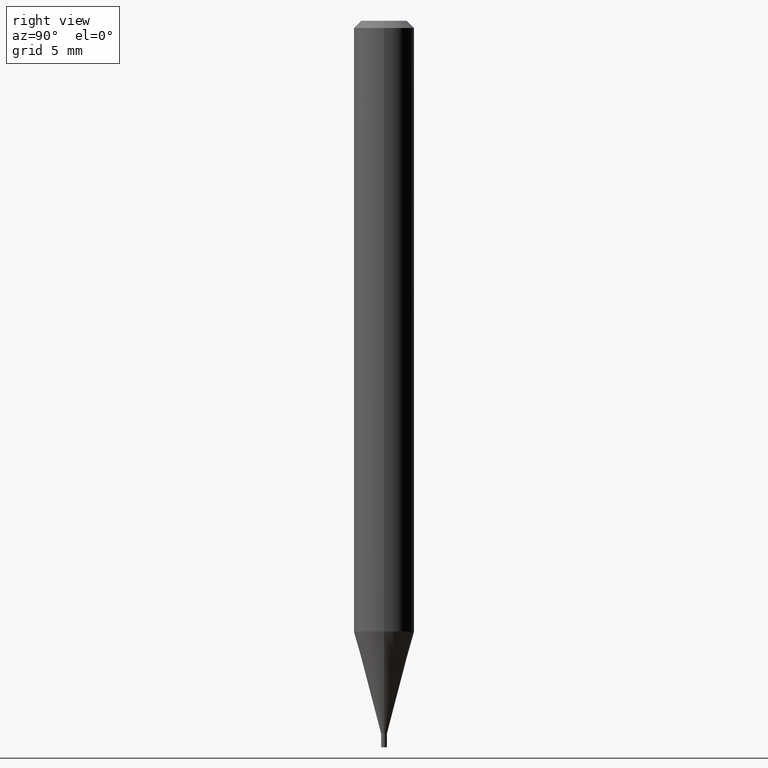
[diagram: clean part render]
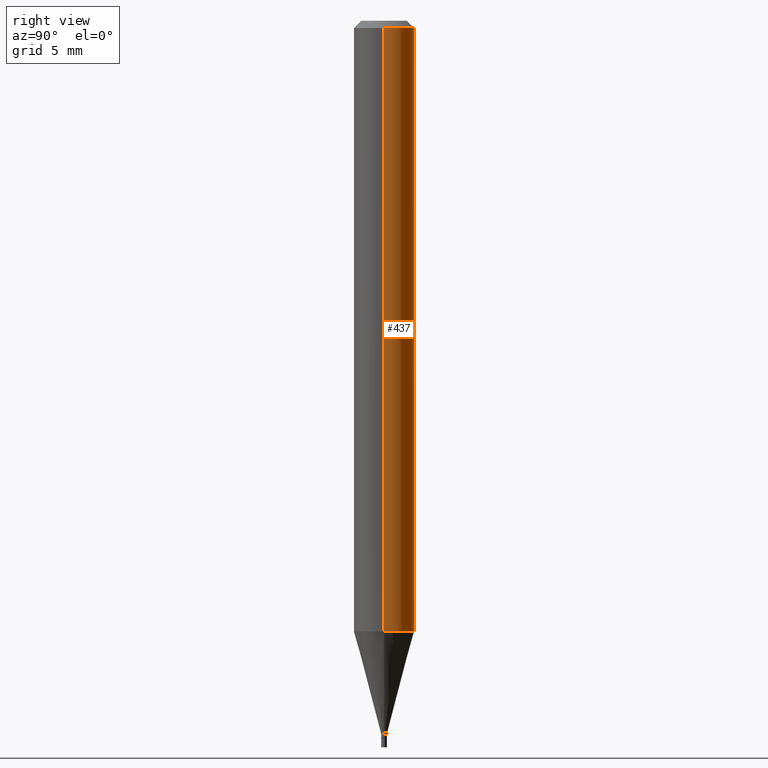
[diagram: same view with one face highlighted and labeled with its STEP entity id]
A machine part, right view. The second image highlights one B-rep face of the part: STEP entity #437.
In plain terms, the highlighted cylindrical surface (edge-blend (fillet) strip) has radius 1.5875 mm, axis along (-0, 0, 1).
Its self-contained STEP definition (entity closure, byte-faithful):
#4 = ORIENTED_EDGE ( 'NONE', *, *, #393, .T. ) ;
#13 = DIRECTION ( 'NONE',  ( -2.445468806185136877E-29, 3.491481338843145188E-15, 1.000000000000000000 ) ) ;
#16 = FACE_OUTER_BOUND ( 'NONE', #401, .T. ) ;
#36 = AXIS2_PLACEMENT_3D ( 'NONE', #82, #234, #56 ) ;
#56 = DIRECTION ( 'NONE',  ( 1.000000000000000000, -6.982962677686266711E-15, 4.876176775795935793E-29 ) ) ;
#58 = VECTOR ( 'NONE', #13, 39.37007874015748143 ) ;
#59 = CARTESIAN_POINT ( 'NONE',  ( -0.06250000000000000000, -1.783718768135502348E-15, -0.01499999999999999944 ) ) ;
#82 = CARTESIAN_POINT ( 'NONE',  ( 0.000000000000000000, 0.000000000000000000, 0.000000000000000000 ) ) ;
#86 = CARTESIAN_POINT ( 'NONE',  ( 0.06250000000000000000, -4.888073874380388472E-16, -0.01499999999999999944 ) ) ;
#106 = AXIS2_PLACEMENT_3D ( 'NONE', #303, #151, #447 ) ;
#131 = CIRCLE ( 'NONE', #106, 0.06250000000000000000 ) ;
#151 = DIRECTION ( 'NONE',  ( -2.445468806185136597E-29, 3.491481338843145583E-15, 1.000000000000000000 ) ) ;
#155 = VERTEX_POINT ( 'NONE', #59 ) ;
#186 = CYLINDRICAL_SURFACE ( 'NONE', #36, 0.06250000000000000000 ) ;
#191 = CARTESIAN_POINT ( 'NONE',  ( 0.06250000000000000000, -4.364351673553916694E-16, 3.047610484872459871E-30 ) ) ;
#196 = CARTESIAN_POINT ( 'NONE',  ( -0.06250000000000000000, -3.959154526038420628E-15, -1.261139129372358836 ) ) ;
#205 = EDGE_CURVE ( 'NONE', #354, #387, #131, .T. ) ;
#218 = LINE ( 'NONE', #300, #58 ) ;
#229 = DIRECTION ( 'NONE',  ( -2.445468806185136877E-29, 3.491481338843145188E-15, 1.000000000000000000 ) ) ;
#234 = DIRECTION ( 'NONE',  ( -2.445468806185136597E-29, 3.491481338843145583E-15, 1.000000000000000000 ) ) ;
#248 = VERTEX_POINT ( 'NONE', #86 ) ;
#261 = ORIENTED_EDGE ( 'NONE', *, *, #205, .T. ) ;
#272 = DIRECTION ( 'NONE',  ( -2.445468806185136597E-29, 3.491481338843145583E-15, 1.000000000000000000 ) ) ;
#300 = CARTESIAN_POINT ( 'NONE',  ( -0.06250000000000000000, 4.440892098500626162E-16, -3.074334431409316114E-30 ) ) ;
#303 = CARTESIAN_POINT ( 'NONE',  ( 3.084076401139584811E-29, -4.403243735888483244E-15, -1.261139129372358836 ) ) ;
#307 = ORIENTED_EDGE ( 'NONE', *, *, #321, .F. ) ;
#321 = EDGE_CURVE ( 'NONE', #354, #248, #409, .T. ) ;
#354 = VERTEX_POINT ( 'NONE', #452 ) ;
#356 = AXIS2_PLACEMENT_3D ( 'NONE', #368, #272, #443 ) ;
#368 = CARTESIAN_POINT ( 'NONE',  ( 3.668203209277705088E-31, -5.237222008264718399E-17, -0.01499999999999999944 ) ) ;
#382 = VECTOR ( 'NONE', #229, 39.37007874015748143 ) ;
#387 = VERTEX_POINT ( 'NONE', #196 ) ;
#393 = EDGE_CURVE ( 'NONE', #387, #155, #218, .T. ) ;
#401 = EDGE_LOOP ( 'NONE', ( #261, #4, #413, #307 ) ) ;
#409 = LINE ( 'NONE', #191, #382 ) ;
#413 = ORIENTED_EDGE ( 'NONE', *, *, #465, .F. ) ;
#432 = CIRCLE ( 'NONE', #356, 0.06250000000000000000 ) ;
#437 = ADVANCED_FACE ( 'NONE', ( #16 ), #186, .T. ) ;
#443 = DIRECTION ( 'NONE',  ( 1.000000000000000000, -6.982962677686266711E-15, 0.000000000000000000 ) ) ;
#447 = DIRECTION ( 'NONE',  ( 1.000000000000000000, -6.982962677686262766E-15, 0.000000000000000000 ) ) ;
#452 = CARTESIAN_POINT ( 'NONE',  ( 0.06250000000000000000, -4.839678903243874125E-15, -1.261139129372358836 ) ) ;
#465 = EDGE_CURVE ( 'NONE', #248, #155, #432, .T. ) ;